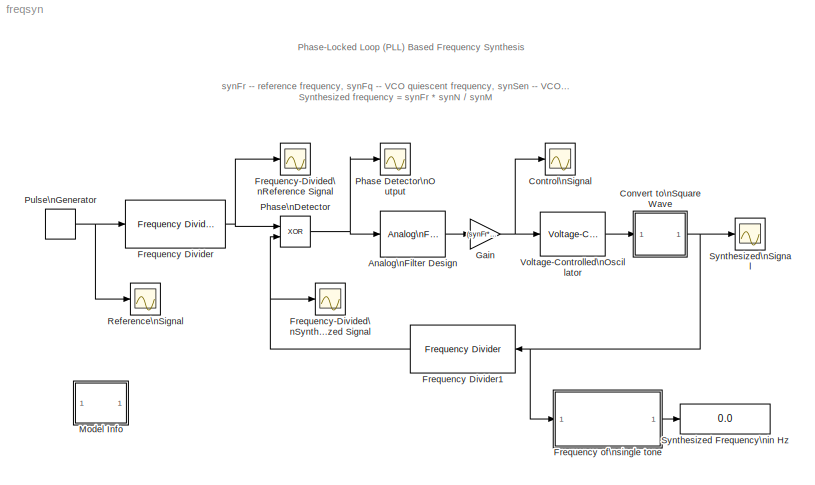
MODEL freqsyn
KIND model
CONFIG PreLoadFcn = synM = 3;    % frequency division ratio\nsynN = 10;   % frequency division ratio\nsynFr = 30e6;   % reference frequency\nsynFq = synFr;       % quiescent frequency\nsynSen = 40e6;   % VCO sensitivity
WORKSPACE source: external: M-Code  (data not in archive)
BLOCK [Reference] Analog\nFilter Design  REF=dsparch4/Analog\nFilter Design
  N = 1
  Ports = [1, 1]
  Rp = 2
  Rs = 40
  SourceBlock = dsparch4/Analog\nFilter Design
  SourceType = Analog Filter Design
  Whi = 80
  Wlo = synFr/synM/10
  filttype = Lowpass
  method = Butterworth
BLOCK [Scope] Control\nSignal
  DataFormat = StructureWithTime
  LimitDataPoints = off
  NumInputPorts = 1
  Ports = [1]
  SaveName = ScopeData1
  TimeRange = 5e-005
  YMax = 2.5
  YMin = 0
  ZoomMode = xonly
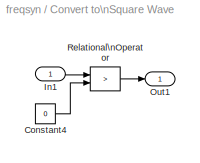
BLOCK [SubSystem] Convert to\nSquare Wave
  EnableExecutionContextPropagation = on
  MinAlgLoopOccurrences = off
  Ports = [1, 1]
  TreatAsAtomicUnit = off
BLOCK [Constant] Convert to\nSquare Wave/Constant4
  Value = 0
BLOCK [Inport] Convert to\nSquare Wave/In1
  IconDisplay = Port number
  LatchInput = off
BLOCK [Outport] Convert to\nSquare Wave/Out1
  BusOutputAsStruct = off
  IconDisplay = Port number
BLOCK [RelationalOperator] Convert to\nSquare Wave/Relational\nOperator
  Operator = >
BLOCK [Reference] Frequency Divider  REF=commblksprivate/Frequency Divider
  Ports = [1, 1]
  ShowPortLabels = on
  SourceBlock = commblksprivate/Frequency Divider
  SourceType = Frequency Divider
  n = synM
BLOCK [Reference] Frequency Divider1  REF=commblksprivate/Frequency Divider
  Ports = [1, 1]
  ShowPortLabels = on
  SourceBlock = commblksprivate/Frequency Divider
  SourceType = Frequency Divider
  n = synN
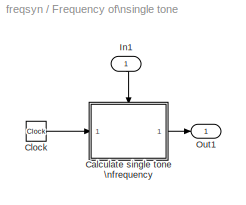
BLOCK [SubSystem] Frequency of\nsingle tone
  EnableExecutionContextPropagation = on
  MaskDisplay = disp('Single Tone\\nFrequency Estimator');
  MaskIconFrame = on
  MaskIconOpaque = on
  MaskIconRotate = none
  MaskIconUnits = autoscale
  MinAlgLoopOccurrences = off
  Ports = [1, 1]
  TreatAsAtomicUnit = off
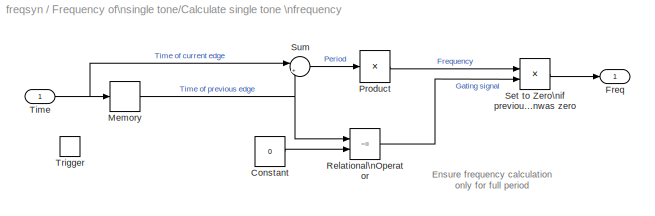
BLOCK [SubSystem] Frequency of\nsingle tone/Calculate single tone \nfrequency
  EnableExecutionContextPropagation = on
  MinAlgLoopOccurrences = off
  Ports = [1, 1, 0, 1]
  TreatAsAtomicUnit = on
BLOCK [Constant] Frequency of\nsingle tone/Calculate single tone \nfrequency/Constant
  Value = 0
BLOCK [Outport] Frequency of\nsingle tone/Calculate single tone \nfrequency/Freq
  BusOutputAsStruct = off
  IconDisplay = Port number
  InitialOutput = 0
BLOCK [Memory] Frequency of\nsingle tone/Calculate single tone \nfrequency/Memory
  InheritSampleTime = on
BLOCK [Product] Frequency of\nsingle tone/Calculate single tone \nfrequency/Product
  Inputs = /
  Ports = [1, 1]
  RndMeth = Floor
BLOCK [RelationalOperator] Frequency of\nsingle tone/Calculate single tone \nfrequency/Relational\nOperator
  Operator = ~=
BLOCK [Product] Frequency of\nsingle tone/Calculate single tone \nfrequency/Set to Zero\nif previous time\nwas zero
  Ports = [2, 1]
  RndMeth = Floor
BLOCK [Sum] Frequency of\nsingle tone/Calculate single tone \nfrequency/Sum
  IconShape = round
  Inputs = |+-
  Ports = [2, 1]
BLOCK [Inport] Frequency of\nsingle tone/Calculate single tone \nfrequency/Time
  IconDisplay = Port number
  LatchInput = off
BLOCK [TriggerPort] Frequency of\nsingle tone/Calculate single tone \nfrequency/Trigger
  Ports = []
  ZeroCross = off
BLOCK [Clock] Frequency of\nsingle tone/Clock
  Decimation = 1
BLOCK [Inport] Frequency of\nsingle tone/In1
  IconDisplay = Port number
  LatchInput = off
BLOCK [Outport] Frequency of\nsingle tone/Out1
  BusOutputAsStruct = off
  IconDisplay = Port number
BLOCK [Scope] Frequency-Divided\nReference Signal
  DataFormat = StructureWithTime
  NumInputPorts = 1
  Ports = [1]
  SaveName = ScopeData5
  TimeRange = 2e-007
  YMax = 2
  YMin = -1
BLOCK [Scope] Frequency-Divided\nSynthesized Signal
  DataFormat = StructureWithTime
  NumInputPorts = 1
  Ports = [1]
  SaveName = ScopeData4
  TimeRange = 2e-007
  YMax = 2
  YMin = -1
BLOCK [Gain] Gain
  Gain = (synFr*synN/synM - synFq) * 2 / synSen
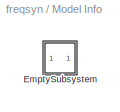
BLOCK [SubSystem] Model Info
  CopyFcn = slcm CopyBlock;
  DeleteFcn = slcm Cancel;
  EnableExecutionContextPropagation = on
  InitFcn = slcm('UpdateAllCMBlocksInThisModelInit')
  LoadFcn = slcm LoadBlock;
  MaskCallbackString = ||||||||||||||||||||||||||||||
  MaskDescription = This block allows revision control information to be displayed within the model.
  MaskDisplay = text(str2num(LeftAlignmentValue), 0.5, MaskDisplayString, 'HorizontalAlignment', HorizontalTextAlignment)\n
  MaskEnableString = on,on,on,on,on,on,on,on,on,on,on,on,on,on,on,on,on,on,on,on,on,on,on,on,on,on,on,on,on,on,on
  MaskIconFrame = on
  MaskIconOpaque = on
  MaskIconRotate = none
  MaskIconUnits = normalized
  MaskPromptString = InitialSaveTempField|InitialBlockCM|BlockCM|Frame|SaveTempField|DisplayStringWithTags|MaskDisplayString|HorizontalTextAlignment|LeftAlignmentValue|SourceBlockDiagram|TagMaxNumber|CMTag1|CMTag2|CMTag3|CMTag4|CMTag5|CMTag6|CMTag7|CMTag8|CMTag9|CMTag10|CMTag11|CMTag12|CMTag13|CMTag14|CMTag15|CMTag16|CMTag17|CMTag18|CMTag19|CMTag20
  MaskSelfModifiable = on
  MaskStyleString = edit,edit,edit,edit,edit,edit,edit,edit,edit,edit,edit,edit,edit,edit,edit,edit,edit,edit,edit,edit,edit,edit,edit,edit,edit,edit,edit,edit,edit,edit,edit
  MaskTabNameString = ,,,,,,,,,,,,,,,,,,,,,,,,,,,,,,
  MaskToolTipString = on,on,on,on,on,on,on,on,on,on,on,on,on,on,on,on,on,on,on,on,on,on,on,on,on,on,on,on,on,on,on
  MaskTunableValueString = on,on,on,on,on,on,on,on,on,on,on,on,on,on,on,on,on,on,on,on,on,on,on,on,on,on,on,on,on,on,on
  MaskType = CMBlock
  MaskValueString = |none|none|on||Info|Info|Center|0.5|freqsyn|20||||||||||||||||||||
  MaskVarAliasString = ,,,,,,,,,,,,,,,,,,,,,,,,,,,,,,
  MaskVariables = InitialSaveTempField=&1;InitialBlockCM=&2;BlockCM=&3;Frame=&4;SaveTempField=&5;DisplayStringWithTags=&6;MaskDisplayString=&7;HorizontalTextAlignment=&8;LeftAlignmentValue=&9;SourceBlockDiagram=&10;TagMaxNumber=@11;CMTag1=&12;CMTag2=&13;CMTag3=&14;CMTag4=&15;CMTag5=&16;CMTag6=&17;CMTag7=&18;CMTag8=&19;CMTag9=&20;CMTag10=&21;CMTag11=&22;CMTag12=&23;CMTag13=&24;CMTag14=&25;CMTag15=&26;CMTag16=&27;CMT...<+45ch>
  MaskVisibilityString = off,off,off,off,off,off,off,off,off,off,off,off,off,off,off,off,off,off,off,off,off,off,off,off,off,off,off,off,off,off,off
  MinAlgLoopOccurrences = off
  NameChangeFcn = slcm Rename;
  OpenFcn = commdemohelp;
  Ports = []
  PostSaveFcn = slcm('UpdateAllCMBlocksInThisModel')
  TreatAsAtomicUnit = off
BLOCK [SubSystem] Model Info/EmptySubsystem
  EnableExecutionContextPropagation = on
  MinAlgLoopOccurrences = off
  Ports = []
  TreatAsAtomicUnit = off
BLOCK [Scope] Phase Detector\nOutput
  DataFormat = StructureWithTime
  NumInputPorts = 1
  Ports = [1]
  SaveName = ScopeData6
  TimeRange = 2e-007
  YMax = 2
  YMin = -1
BLOCK [Logic] Phase\nDetector
  Operator = XOR
  Ports = [2, 1]
BLOCK [DiscretePulseGenerator] Pulse\nGenerator
  Period = 1/synFr
  Ports = [0, 1]
  PulseType = Time based
  PulseWidth = 50
BLOCK [Scope] Reference\nSignal
  DataFormat = StructureWithTime
  NumInputPorts = 1
  Ports = [1]
  TimeRange = 1e-007
  YMax = 2
  YMin = -1
BLOCK [Display] Synthesized Frequency\nin Hz
  Decimation = 1
  Ports = [1]
BLOCK [Scope] Synthesized\nSignal
  DataFormat = StructureWithTime
  MaxDataPoints = 50000
  NumInputPorts = 1
  Ports = [1]
  SaveName = ScopeData2
  TimeRange = 5e-008
  YMax = 2
  YMin = -1
  ZoomMode = xonly
BLOCK [Reference] Voltage-Controlled\nOscillator  REF=commsynccomp2/Voltage-Controlled\nOscillator
  Ac = 1
  Fc = synFq
  Kc = synSen
  Ph = 0
  Ports = [1, 1]
  ShowPortLabels = on
  SourceBlock = commsynccomp2/Voltage-Controlled\nOscillator
  SourceType = Voltage-Controlled Oscillator
ANNOTATION (root): Phase-Locked Loop (PLL) Based Frequency Synthesis
ANNOTATION (root): synFr -- reference frequency, synFq -- VCO quiescent frequency, synSen -- VCO sensitivity\nSynthesized frequency = synFr * synN / synM
ANNOTATION Frequency of\nsingle tone/Calculate single tone \nfrequency: Ensure frequency calculation\nonly for full period
LINE Analog\nFilter Design:1 -> Gain:1
LINE Convert to\nSquare Wave/Constant4:1 -> Convert to\nSquare Wave/Relational\nOperator:2
LINE Convert to\nSquare Wave/In1:1 -> Convert to\nSquare Wave/Relational\nOperator:1
LINE Convert to\nSquare Wave/Relational\nOperator:1 -> Convert to\nSquare Wave/Out1:1
NET Convert to\nSquare Wave:1 -> Frequency Divider1:1, Frequency of\nsingle tone:1, Synthesized\nSignal:1
NET Frequency Divider1:1 -> Frequency-Divided\nSynthesized Signal:1, Phase\nDetector:2
NET Frequency Divider:1 -> Frequency-Divided\nReference Signal:1, Phase\nDetector:1
LINE Frequency of\nsingle tone/Calculate single tone \nfrequency/Constant:1 -> Frequency of\nsingle tone/Calculate single tone \nfrequency/Relational\nOperator:2
NET Frequency of\nsingle tone/Calculate single tone \nfrequency/Memory:1 -> Frequency of\nsingle tone/Calculate single tone \nfrequency/Relational\nOperator:1, Frequency of\nsingle tone/Calculate single tone \nfrequency/Sum:2
LINE Frequency of\nsingle tone/Calculate single tone \nfrequency/Product:1 -> Frequency of\nsingle tone/Calculate single tone \nfrequency/Set to Zero\nif previous time\nwas zero:1
LINE Frequency of\nsingle tone/Calculate single tone \nfrequency/Relational\nOperator:1 -> Frequency of\nsingle tone/Calculate single tone \nfrequency/Set to Zero\nif previous time\nwas zero:2
LINE Frequency of\nsingle tone/Calculate single tone \nfrequency/Set to Zero\nif previous time\nwas zero:1 -> Frequency of\nsingle tone/Calculate single tone \nfrequency/Freq:1
LINE Frequency of\nsingle tone/Calculate single tone \nfrequency/Sum:1 -> Frequency of\nsingle tone/Calculate single tone \nfrequency/Product:1
NET Frequency of\nsingle tone/Calculate single tone \nfrequency/Time:1 -> Frequency of\nsingle tone/Calculate single tone \nfrequency/Memory:1, Frequency of\nsingle tone/Calculate single tone \nfrequency/Sum:1
LINE Frequency of\nsingle tone/Calculate single tone \nfrequency:1 -> Frequency of\nsingle tone/Out1:1
LINE Frequency of\nsingle tone/Clock:1 -> Frequency of\nsingle tone/Calculate single tone \nfrequency:1
LINE Frequency of\nsingle tone/In1:1 -> Frequency of\nsingle tone/Calculate single tone \nfrequency:trigger
LINE Frequency of\nsingle tone:1 -> Synthesized Frequency\nin Hz:1
NET Gain:1 -> Control\nSignal:1, Voltage-Controlled\nOscillator:1
NET Phase\nDetector:1 -> Analog\nFilter Design:1, Phase Detector\nOutput:1
NET Pulse\nGenerator:1 -> Frequency Divider:1, Reference\nSignal:1
LINE Voltage-Controlled\nOscillator:1 -> Convert to\nSquare Wave:1
note: NET lines group one-source signal fan-out (src -> all destinations, sorted); 1:1 wires keep LINE
